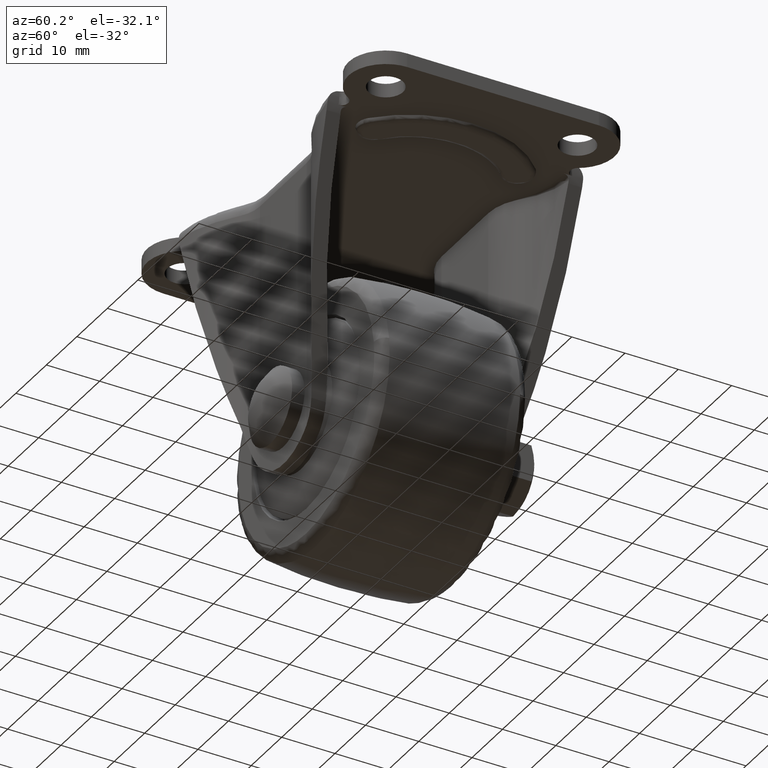
[diagram: clean part render]
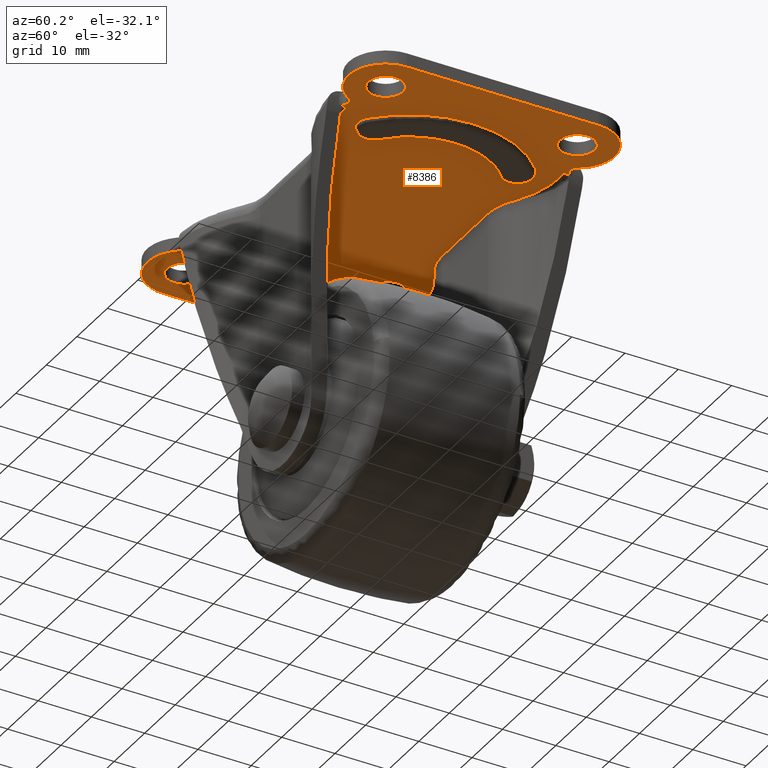
[diagram: same view with one face highlighted and labeled with its STEP entity id]
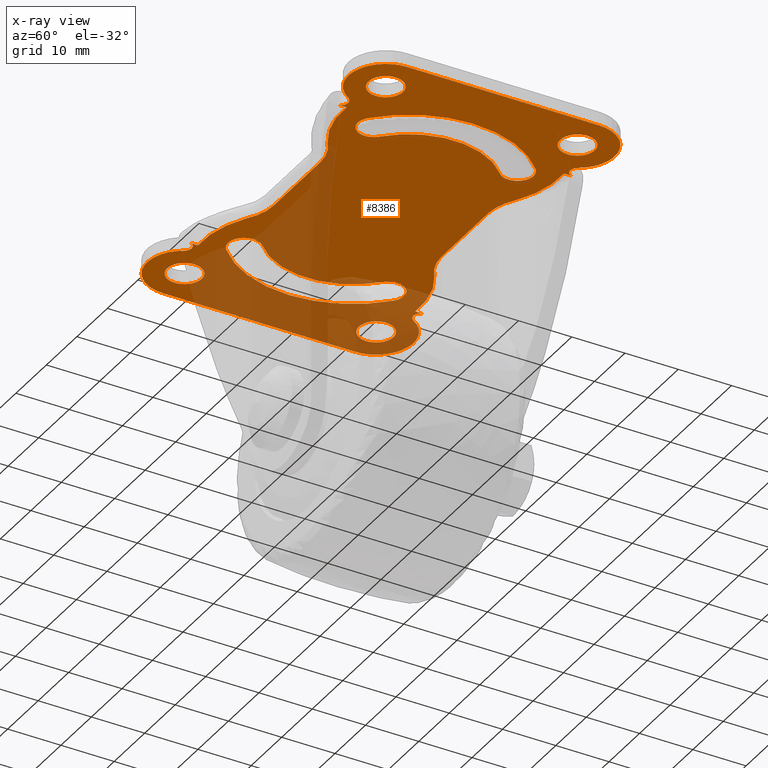
[diagram: x-ray of the same camera — body ghosted, the highlighted face saturated]
A machine part, auxiliary view. The second image highlights one B-rep face of the part: STEP entity #8386.
The next image is the same camera in x-ray: the body ghosted, the highlighted face saturated — about 29% of this face is hidden behind the body in this view.
In plain terms, the highlighted face is a freeform B-spline surface patch.
Its self-contained STEP definition (entity closure, byte-faithful):
#2383=CARTESIAN_POINT('',(-32.801592246363199,21.243938094861981,-2.600000000000160));
#2384=VERTEX_POINT('',#2383);
#2390=CARTESIAN_POINT('',(-29.750000000000000,18.0,-2.600000000000160));
#2391=VERTEX_POINT('',#2390);
#2392=CARTESIAN_POINT('',(-29.750000000000000,18.0,-2.600000000000160));
#2393=CARTESIAN_POINT('',(-29.749999999999993,21.057294717163035,-2.600000000000160));
#2394=CARTESIAN_POINT('',(-32.801592246363199,21.243938094861985,-2.600000000000160));
#2402=(BOUNDED_CURVE()B_SPLINE_CURVE(2,(#2392,#2393,#2394),.UNSPECIFIED.,.F.,.U.)B_SPLINE_CURVE_WITH_KNOTS((3,3),(0.500000000000000,0.739332962226169),.UNSPECIFIED.)CURVE()GEOMETRIC_REPRESENTATION_ITEM()RATIONAL_B_SPLINE_CURVE((1.0,0.719603993301676,0.976072041639340))REPRESENTATION_ITEM(''));
#2403=EDGE_CURVE('',#2391,#2384,#2402,.T.);
#2405=CARTESIAN_POINT('',(-33.383611262737581,14.772719039330340,-2.600000000000160));
#2406=VERTEX_POINT('',#2405);
#2407=CARTESIAN_POINT('',(-33.383611262737581,14.772719039330342,-2.600000000000160));
#2408=CARTESIAN_POINT('',(-33.192478388972916,14.750000000000005,-2.600000000000160));
#2409=CARTESIAN_POINT('',(-33.0,14.750000000000000,-2.600000000000160));
#2410=CARTESIAN_POINT('',(-29.750000000000007,14.749999999999993,-2.600000000000160));
#2411=CARTESIAN_POINT('',(-29.750000000000000,18.0,-2.600000000000160));
#2419=(BOUNDED_CURVE()B_SPLINE_CURVE(2,(#2407,#2408,#2409,#2410,#2411),.UNSPECIFIED.,.F.,.U.)B_SPLINE_CURVE_WITH_KNOTS((3,2,3),(0.229562473504844,0.250000000000000,0.500000000000000),.UNSPECIFIED.)CURVE()GEOMETRIC_REPRESENTATION_ITEM()RATIONAL_B_SPLINE_CURVE((0.956026754166717,0.976055948320994,1.0,0.707106781186547,1.0))REPRESENTATION_ITEM(''));
#2420=EDGE_CURVE('',#2406,#2391,#2419,.T.);
#2464=CARTESIAN_POINT('',(-36.250000000000007,18.0,-2.600000000000160));
#2465=VERTEX_POINT('',#2464);
#2466=CARTESIAN_POINT('',(-36.250000000000007,18.0,-2.600000000000160));
#2467=CARTESIAN_POINT('',(-36.250000000000007,15.113432790843826,-2.600000000000161));
#2468=CARTESIAN_POINT('',(-33.383611262737588,14.772719039330344,-2.600000000000160));
#2476=(BOUNDED_CURVE()B_SPLINE_CURVE(2,(#2466,#2467,#2468),.UNSPECIFIED.,.F.,.U.)B_SPLINE_CURVE_WITH_KNOTS((3,3),(0.0,0.229562473504844),.UNSPECIFIED.)CURVE()GEOMETRIC_REPRESENTATION_ITEM()RATIONAL_B_SPLINE_CURVE((1.0,0.731050832865553,0.956026754166717))REPRESENTATION_ITEM(''));
#2477=EDGE_CURVE('',#2465,#2406,#2476,.T.);
#2479=CARTESIAN_POINT('',(-32.801592246363199,21.243938094861985,-2.600000000000160));
#2480=CARTESIAN_POINT('',(-32.900703519130644,21.250000000000000,-2.600000000000160));
#2481=CARTESIAN_POINT('',(-33.0,21.250000000000000,-2.600000000000160));
#2482=CARTESIAN_POINT('',(-36.250000000000007,21.249999999999996,-2.600000000000160));
#2483=CARTESIAN_POINT('',(-36.250000000000007,18.0,-2.600000000000160));
#2491=(BOUNDED_CURVE()B_SPLINE_CURVE(2,(#2479,#2480,#2481,#2482,#2483),.UNSPECIFIED.,.F.,.U.)B_SPLINE_CURVE_WITH_KNOTS((3,2,3),(0.739332962226168,0.750000000000000,1.0),.UNSPECIFIED.)CURVE()GEOMETRIC_REPRESENTATION_ITEM()RATIONAL_B_SPLINE_CURVE((0.976072041639340,0.987502787884871,1.0,0.707106781186547,1.0))REPRESENTATION_ITEM(''));
#2492=EDGE_CURVE('',#2384,#2465,#2491,.T.);
#2569=CARTESIAN_POINT('',(33.198407753636808,21.243938094861981,-2.600000000000160));
#2570=VERTEX_POINT('',#2569);
#2576=CARTESIAN_POINT('',(36.250000000000007,18.0,-2.600000000000160));
#2577=VERTEX_POINT('',#2576);
#2578=CARTESIAN_POINT('',(36.250000000000007,18.0,-2.600000000000160));
#2579=CARTESIAN_POINT('',(36.250000000000014,21.057294717163035,-2.600000000000160));
#2580=CARTESIAN_POINT('',(33.198407753636808,21.243938094861985,-2.600000000000160));
#2588=(BOUNDED_CURVE()B_SPLINE_CURVE(2,(#2578,#2579,#2580),.UNSPECIFIED.,.F.,.U.)B_SPLINE_CURVE_WITH_KNOTS((3,3),(0.500000000000000,0.739332962226169),.UNSPECIFIED.)CURVE()GEOMETRIC_REPRESENTATION_ITEM()RATIONAL_B_SPLINE_CURVE((1.0,0.719603993301676,0.976072041639340))REPRESENTATION_ITEM(''));
#2589=EDGE_CURVE('',#2577,#2570,#2588,.T.);
#2591=CARTESIAN_POINT('',(32.616388737262412,14.772719039330340,-2.600000000000160));
#2592=VERTEX_POINT('',#2591);
#2593=CARTESIAN_POINT('',(32.616388737262419,14.772719039330344,-2.600000000000160));
#2594=CARTESIAN_POINT('',(32.807521611027077,14.750000000000002,-2.600000000000160));
#2595=CARTESIAN_POINT('',(33.0,14.750000000000000,-2.600000000000160));
#2596=CARTESIAN_POINT('',(36.250000000000007,14.749999999999993,-2.600000000000160));
#2597=CARTESIAN_POINT('',(36.250000000000007,18.0,-2.600000000000160));
#2605=(BOUNDED_CURVE()B_SPLINE_CURVE(2,(#2593,#2594,#2595,#2596,#2597),.UNSPECIFIED.,.F.,.U.)B_SPLINE_CURVE_WITH_KNOTS((3,2,3),(0.229562473504844,0.250000000000000,0.500000000000000),.UNSPECIFIED.)CURVE()GEOMETRIC_REPRESENTATION_ITEM()RATIONAL_B_SPLINE_CURVE((0.956026754166716,0.976055948320994,1.0,0.707106781186547,1.0))REPRESENTATION_ITEM(''));
#2606=EDGE_CURVE('',#2592,#2577,#2605,.T.);
#2650=CARTESIAN_POINT('',(29.750000000000000,18.0,-2.600000000000160));
#2651=VERTEX_POINT('',#2650);
#2652=CARTESIAN_POINT('',(29.750000000000000,18.0,-2.600000000000160));
#2653=CARTESIAN_POINT('',(29.750000000000011,15.113432790843827,-2.600000000000160));
#2654=CARTESIAN_POINT('',(32.616388737262412,14.772719039330346,-2.600000000000159));
#2662=(BOUNDED_CURVE()B_SPLINE_CURVE(2,(#2652,#2653,#2654),.UNSPECIFIED.,.F.,.U.)B_SPLINE_CURVE_WITH_KNOTS((3,3),(0.0,0.229562473504844),.UNSPECIFIED.)CURVE()GEOMETRIC_REPRESENTATION_ITEM()RATIONAL_B_SPLINE_CURVE((1.0,0.731050832865554,0.956026754166716))REPRESENTATION_ITEM(''));
#2663=EDGE_CURVE('',#2651,#2592,#2662,.T.);
#2665=CARTESIAN_POINT('',(33.198407753636808,21.243938094861981,-2.600000000000159));
#2666=CARTESIAN_POINT('',(33.099296480869349,21.249999999999996,-2.600000000000160));
#2667=CARTESIAN_POINT('',(33.0,21.250000000000000,-2.600000000000160));
#2668=CARTESIAN_POINT('',(29.750000000000007,21.249999999999996,-2.600000000000160));
#2669=CARTESIAN_POINT('',(29.750000000000000,18.0,-2.600000000000160));
#2677=(BOUNDED_CURVE()B_SPLINE_CURVE(2,(#2665,#2666,#2667,#2668,#2669),.UNSPECIFIED.,.F.,.U.)B_SPLINE_CURVE_WITH_KNOTS((3,2,3),(0.739332962226169,0.750000000000000,1.0),.UNSPECIFIED.)CURVE()GEOMETRIC_REPRESENTATION_ITEM()RATIONAL_B_SPLINE_CURVE((0.976072041639340,0.987502787884871,1.0,0.707106781186547,1.0))REPRESENTATION_ITEM(''));
#2678=EDGE_CURVE('',#2570,#2651,#2677,.T.);
#2755=CARTESIAN_POINT('',(33.198407753636808,-14.756061905138020,-2.600000000000160));
#2756=VERTEX_POINT('',#2755);
#2762=CARTESIAN_POINT('',(36.250000000000007,-18.0,-2.600000000000160));
#2763=VERTEX_POINT('',#2762);
#2764=CARTESIAN_POINT('',(36.250000000000007,-18.0,-2.600000000000160));
#2765=CARTESIAN_POINT('',(36.250000000000014,-14.942705282836961,-2.600000000000160));
#2766=CARTESIAN_POINT('',(33.198407753636808,-14.756061905138013,-2.600000000000160));
#2774=(BOUNDED_CURVE()B_SPLINE_CURVE(2,(#2764,#2765,#2766),.UNSPECIFIED.,.F.,.U.)B_SPLINE_CURVE_WITH_KNOTS((3,3),(0.500000000000000,0.739332962226169),.UNSPECIFIED.)CURVE()GEOMETRIC_REPRESENTATION_ITEM()RATIONAL_B_SPLINE_CURVE((1.0,0.719603993301676,0.976072041639340))REPRESENTATION_ITEM(''));
#2775=EDGE_CURVE('',#2763,#2756,#2774,.T.);
#2777=CARTESIAN_POINT('',(32.616388737262412,-21.227280960669660,-2.600000000000160));
#2778=VERTEX_POINT('',#2777);
#2779=CARTESIAN_POINT('',(32.616388737262412,-21.227280960669656,-2.600000000000160));
#2780=CARTESIAN_POINT('',(32.807521611027077,-21.249999999999989,-2.600000000000160));
#2781=CARTESIAN_POINT('',(33.0,-21.250000000000000,-2.600000000000160));
#2782=CARTESIAN_POINT('',(36.250000000000007,-21.249999999999996,-2.600000000000160));
#2783=CARTESIAN_POINT('',(36.250000000000007,-18.0,-2.600000000000160));
#2791=(BOUNDED_CURVE()B_SPLINE_CURVE(2,(#2779,#2780,#2781,#2782,#2783),.UNSPECIFIED.,.F.,.U.)B_SPLINE_CURVE_WITH_KNOTS((3,2,3),(0.229562473504843,0.250000000000000,0.500000000000000),.UNSPECIFIED.)CURVE()GEOMETRIC_REPRESENTATION_ITEM()RATIONAL_B_SPLINE_CURVE((0.956026754166716,0.976055948320993,1.0,0.707106781186547,1.0))REPRESENTATION_ITEM(''));
#2792=EDGE_CURVE('',#2778,#2763,#2791,.T.);
#2836=CARTESIAN_POINT('',(29.750000000000000,-18.0,-2.600000000000160));
#2837=VERTEX_POINT('',#2836);
#2838=CARTESIAN_POINT('',(29.750000000000000,-18.0,-2.600000000000160));
#2839=CARTESIAN_POINT('',(29.750000000000018,-20.886567209156176,-2.600000000000160));
#2840=CARTESIAN_POINT('',(32.616388737262405,-21.227280960669653,-2.600000000000160));
#2848=(BOUNDED_CURVE()B_SPLINE_CURVE(2,(#2838,#2839,#2840),.UNSPECIFIED.,.F.,.U.)B_SPLINE_CURVE_WITH_KNOTS((3,3),(0.0,0.229562473504843),.UNSPECIFIED.)CURVE()GEOMETRIC_REPRESENTATION_ITEM()RATIONAL_B_SPLINE_CURVE((1.0,0.731050832865554,0.956026754166716))REPRESENTATION_ITEM(''));
#2849=EDGE_CURVE('',#2837,#2778,#2848,.T.);
#2851=CARTESIAN_POINT('',(33.198407753636808,-14.756061905138015,-2.600000000000159));
#2852=CARTESIAN_POINT('',(33.099296480869349,-14.750000000000000,-2.600000000000160));
#2853=CARTESIAN_POINT('',(33.0,-14.750000000000000,-2.600000000000160));
#2854=CARTESIAN_POINT('',(29.750000000000007,-14.749999999999993,-2.600000000000160));
#2855=CARTESIAN_POINT('',(29.750000000000000,-18.0,-2.600000000000160));
#2863=(BOUNDED_CURVE()B_SPLINE_CURVE(2,(#2851,#2852,#2853,#2854,#2855),.UNSPECIFIED.,.F.,.U.)B_SPLINE_CURVE_WITH_KNOTS((3,2,3),(0.739332962226169,0.750000000000000,1.0),.UNSPECIFIED.)CURVE()GEOMETRIC_REPRESENTATION_ITEM()RATIONAL_B_SPLINE_CURVE((0.976072041639340,0.987502787884871,1.0,0.707106781186547,1.0))REPRESENTATION_ITEM(''));
#2864=EDGE_CURVE('',#2756,#2837,#2863,.T.);
#2941=CARTESIAN_POINT('',(-32.801592246363199,-14.756061905138020,-2.600000000000160));
#2942=VERTEX_POINT('',#2941);
#2948=CARTESIAN_POINT('',(-29.750000000000000,-18.0,-2.600000000000160));
#2949=VERTEX_POINT('',#2948);
#2950=CARTESIAN_POINT('',(-29.750000000000000,-18.0,-2.600000000000160));
#2951=CARTESIAN_POINT('',(-29.749999999999993,-14.942705282836961,-2.600000000000160));
#2952=CARTESIAN_POINT('',(-32.801592246363199,-14.756061905138013,-2.600000000000160));
#2960=(BOUNDED_CURVE()B_SPLINE_CURVE(2,(#2950,#2951,#2952),.UNSPECIFIED.,.F.,.U.)B_SPLINE_CURVE_WITH_KNOTS((3,3),(0.500000000000000,0.739332962226169),.UNSPECIFIED.)CURVE()GEOMETRIC_REPRESENTATION_ITEM()RATIONAL_B_SPLINE_CURVE((1.0,0.719603993301676,0.976072041639340))REPRESENTATION_ITEM(''));
#2961=EDGE_CURVE('',#2949,#2942,#2960,.T.);
#2963=CARTESIAN_POINT('',(-33.383611262737581,-21.227280960669660,-2.600000000000160));
#2964=VERTEX_POINT('',#2963);
#2965=CARTESIAN_POINT('',(-33.383611262737581,-21.227280960669656,-2.600000000000160));
#2966=CARTESIAN_POINT('',(-33.192478388972923,-21.249999999999996,-2.600000000000160));
#2967=CARTESIAN_POINT('',(-33.0,-21.250000000000000,-2.600000000000160));
#2968=CARTESIAN_POINT('',(-29.750000000000007,-21.249999999999996,-2.600000000000160));
#2969=CARTESIAN_POINT('',(-29.750000000000000,-18.0,-2.600000000000160));
#2977=(BOUNDED_CURVE()B_SPLINE_CURVE(2,(#2965,#2966,#2967,#2968,#2969),.UNSPECIFIED.,.F.,.U.)B_SPLINE_CURVE_WITH_KNOTS((3,2,3),(0.229562473504844,0.250000000000000,0.500000000000000),.UNSPECIFIED.)CURVE()GEOMETRIC_REPRESENTATION_ITEM()RATIONAL_B_SPLINE_CURVE((0.956026754166717,0.976055948320995,1.0,0.707106781186547,1.0))REPRESENTATION_ITEM(''));
#2978=EDGE_CURVE('',#2964,#2949,#2977,.T.);
#3022=CARTESIAN_POINT('',(-36.250000000000007,-18.0,-2.600000000000160));
#3023=VERTEX_POINT('',#3022);
#3024=CARTESIAN_POINT('',(-36.250000000000007,-18.0,-2.600000000000160));
#3025=CARTESIAN_POINT('',(-36.250000000000014,-20.886567209156187,-2.600000000000160));
#3026=CARTESIAN_POINT('',(-33.383611262737588,-21.227280960669660,-2.600000000000160));
#3034=(BOUNDED_CURVE()B_SPLINE_CURVE(2,(#3024,#3025,#3026),.UNSPECIFIED.,.F.,.U.)B_SPLINE_CURVE_WITH_KNOTS((3,3),(0.0,0.229562473504844),.UNSPECIFIED.)CURVE()GEOMETRIC_REPRESENTATION_ITEM()RATIONAL_B_SPLINE_CURVE((1.0,0.731050832865553,0.956026754166717))REPRESENTATION_ITEM(''));
#3035=EDGE_CURVE('',#3023,#2964,#3034,.T.);
#3037=CARTESIAN_POINT('',(-32.801592246363199,-14.756061905138019,-2.600000000000160));
#3038=CARTESIAN_POINT('',(-32.900703519130644,-14.750000000000002,-2.600000000000160));
#3039=CARTESIAN_POINT('',(-33.0,-14.750000000000000,-2.600000000000160));
#3040=CARTESIAN_POINT('',(-36.250000000000007,-14.749999999999993,-2.600000000000160));
#3041=CARTESIAN_POINT('',(-36.250000000000007,-18.0,-2.600000000000160));
#3049=(BOUNDED_CURVE()B_SPLINE_CURVE(2,(#3037,#3038,#3039,#3040,#3041),.UNSPECIFIED.,.F.,.U.)B_SPLINE_CURVE_WITH_KNOTS((3,2,3),(0.739332962226168,0.750000000000000,1.0),.UNSPECIFIED.)CURVE()GEOMETRIC_REPRESENTATION_ITEM()RATIONAL_B_SPLINE_CURVE((0.976072041639340,0.987502787884871,1.0,0.707106781186547,1.0))REPRESENTATION_ITEM(''));
#3050=EDGE_CURVE('',#2942,#3023,#3049,.T.);
#3491=CARTESIAN_POINT('',(24.386157740226601,21.929116716007400,-2.600000000000160));
#3492=VERTEX_POINT('',#3491);
#3493=CARTESIAN_POINT('',(24.826150739570700,21.091729408500200,-2.600000000000160));
#3494=VERTEX_POINT('',#3493);
#3495=CARTESIAN_POINT('',(24.386157740226601,21.929116716007400,-2.600000000000165));
#3496=CARTESIAN_POINT('',(24.386157740226611,21.846425880337360,-2.600000000000165));
#3497=CARTESIAN_POINT('',(24.396223317669602,21.765457696355359,-2.600000000000111));
#3498=CARTESIAN_POINT('',(24.425732847345230,21.646471788088490,-2.600000000000110));
#3499=CARTESIAN_POINT('',(24.438091668643239,21.606994525176319,-2.600000000000111));
#3500=CARTESIAN_POINT('',(24.467431192260289,21.530055640321081,-2.600000000000110));
#3501=CARTESIAN_POINT('',(24.501160698240959,21.455545703912470,-2.600000000000110));
#3502=CARTESIAN_POINT('',(24.543387942038841,21.385737510099030,-2.600000000000110));
#3503=CARTESIAN_POINT('',(24.589913277516210,21.318307422219409,-2.600000000000111));
#3504=CARTESIAN_POINT('',(24.615497259556861,21.285611899102399,-2.600000000000111));
#3505=CARTESIAN_POINT('',(24.697147492553409,21.193308832927961,-2.600000000000110));
#3506=CARTESIAN_POINT('',(24.758249570277410,21.138890804097262,-2.600000000000110));
#3507=CARTESIAN_POINT('',(24.826150739570700,21.091729408500200,-2.600000000000160));
#3508=B_SPLINE_CURVE_WITH_KNOTS('',3,(#3495,#3496,#3497,#3498,#3499,#3500,#3501,#3502,#3503,#3504,#3505,#3506,#3507),.UNSPECIFIED.,.F.,.U.,(4,2,2,1,2,2,4),(0.0,0.250000000000002,0.375000000000002,0.500000000000001,0.625000000000001,0.750000000000001,1.0),.UNSPECIFIED.);
#3509=EDGE_CURVE('',#3492,#3494,#3508,.T.);
#3731=CARTESIAN_POINT('',(-24.826150739570799,21.091729408500100,-2.600000000000160));
#3732=VERTEX_POINT('',#3731);
#3733=CARTESIAN_POINT('',(-24.386157740226651,21.929116716007350,-2.600000000000115));
#3734=VERTEX_POINT('',#3733);
#3735=CARTESIAN_POINT('',(-24.826150739570799,21.091729408500100,-2.600000000000160));
#3736=CARTESIAN_POINT('',(-24.758246360519500,21.138893033464811,-2.600000000000160));
#3737=CARTESIAN_POINT('',(-24.697330116525521,21.193182564031570,-2.600000000000110));
#3738=CARTESIAN_POINT('',(-24.616067358109529,21.284927817021739,-2.600000000000110));
#3739=CARTESIAN_POINT('',(-24.590558504812162,21.317433185237029,-2.600000000000110));
#3740=CARTESIAN_POINT('',(-24.543711678433070,21.385208656423899,-2.600000000000110));
#3741=CARTESIAN_POINT('',(-24.501348583326809,21.455191089438070,-2.600000000000110));
#3742=CARTESIAN_POINT('',(-24.467696849142591,21.529461388929761,-2.600000000000110));
#3743=CARTESIAN_POINT('',(-24.438467606787341,21.605908507248060,-2.600000000000110));
#3744=CARTESIAN_POINT('',(-24.426011052459611,21.645481008998338,-2.600000000000111));
#3745=CARTESIAN_POINT('',(-24.396224557105540,21.765194394823489,-2.600000000000109));
#3746=CARTESIAN_POINT('',(-24.386157740226640,21.846424787743299,-2.600000000000109));
#3747=CARTESIAN_POINT('',(-24.386157740226651,21.929116716007350,-2.600000000000110));
#3748=B_SPLINE_CURVE_WITH_KNOTS('',3,(#3735,#3736,#3737,#3738,#3739,#3740,#3741,#3742,#3743,#3744,#3745,#3746,#3747),.UNSPECIFIED.,.F.,.U.,(4,2,2,1,2,2,4),(0.0,0.250000000000009,0.375000000000010,0.500000000000010,0.625000000000011,0.750000000000011,1.0),.UNSPECIFIED.);
#3749=EDGE_CURVE('',#3732,#3734,#3748,.T.);
#3829=CARTESIAN_POINT('',(-24.386157740226651,-21.929116716007350,-2.600000000000160));
#3830=VERTEX_POINT('',#3829);
#3831=CARTESIAN_POINT('',(-24.826150739570799,-21.091729408500100,-2.600000000000160));
#3832=VERTEX_POINT('',#3831);
#3833=CARTESIAN_POINT('',(-24.386157740226651,-21.929116716007350,-2.600000000000160));
#3834=CARTESIAN_POINT('',(-24.386157740226651,-21.846425880337300,-2.600000000000160));
#3835=CARTESIAN_POINT('',(-24.396223317669630,-21.765457696355298,-2.600000000000110));
#3836=CARTESIAN_POINT('',(-24.425732847345291,-21.646471788088419,-2.600000000000111));
#3837=CARTESIAN_POINT('',(-24.438091668643299,-21.606994525176241,-2.600000000000110));
#3838=CARTESIAN_POINT('',(-24.467431192260349,-21.530055640320999,-2.600000000000110));
#3839=CARTESIAN_POINT('',(-24.501161051664820,-21.455545899459452,-2.600000000000110));
#3840=CARTESIAN_POINT('',(-24.543387942038930,-21.385737510098949,-2.600000000000110));
#3841=CARTESIAN_POINT('',(-24.589913277516281,-21.318307422219331,-2.600000000000110));
#3842=CARTESIAN_POINT('',(-24.615497259556939,-21.285611899102300,-2.600000000000110));
#3843=CARTESIAN_POINT('',(-24.697147492553508,-21.193308832927880,-2.600000000000111));
#3844=CARTESIAN_POINT('',(-24.758249570277510,-21.138890804097208,-2.600000000000110));
#3845=CARTESIAN_POINT('',(-24.826150739570799,-21.091729408500100,-2.600000000000110));
#3846=B_SPLINE_CURVE_WITH_KNOTS('',3,(#3833,#3834,#3835,#3836,#3837,#3838,#3839,#3840,#3841,#3842,#3843,#3844,#3845),.UNSPECIFIED.,.F.,.U.,(4,2,2,1,2,2,4),(0.0,0.249999999999998,0.374999999999997,0.499999999999996,0.624999999999995,0.749999999999994,1.0),.UNSPECIFIED.);
#3847=EDGE_CURVE('',#3830,#3832,#3846,.T.);
#4015=CARTESIAN_POINT('',(24.386157740226601,-21.929116716007400,-2.600000000000110));
#4016=VERTEX_POINT('',#4015);
#4028=CARTESIAN_POINT('',(24.826150739570700,-21.091729408500150,-2.600000000000160));
#4029=VERTEX_POINT('',#4028);
#4030=CARTESIAN_POINT('',(24.826150739570700,-21.091729408500150,-2.600000000000160));
#4031=CARTESIAN_POINT('',(24.758246360519419,-21.138893033464861,-2.600000000000160));
#4032=CARTESIAN_POINT('',(24.697330116525450,-21.193182564031648,-2.600000000000111));
#4033=CARTESIAN_POINT('',(24.616067358109461,-21.284927817021810,-2.600000000000110));
#4034=CARTESIAN_POINT('',(24.590558504812090,-21.317433185237089,-2.600000000000109));
#4035=CARTESIAN_POINT('',(24.543711678433009,-21.385208656423949,-2.600000000000110));
#4036=CARTESIAN_POINT('',(24.501348583326759,-21.455191089438149,-2.600000000000110));
#4037=CARTESIAN_POINT('',(24.467696849142531,-21.529461388929828,-2.600000000000110));
#4038=CARTESIAN_POINT('',(24.438467606787281,-21.605908507248120,-2.600000000000110));
#4039=CARTESIAN_POINT('',(24.426011052459550,-21.645481008998392,-2.600000000000110));
#4040=CARTESIAN_POINT('',(24.396224557105491,-21.765194394823538,-2.600000000000109));
#4041=CARTESIAN_POINT('',(24.386157740226590,-21.846424787743349,-2.600000000000110));
#4042=CARTESIAN_POINT('',(24.386157740226601,-21.929116716007400,-2.600000000000110));
#4043=B_SPLINE_CURVE_WITH_KNOTS('',3,(#4030,#4031,#4032,#4033,#4034,#4035,#4036,#4037,#4038,#4039,#4040,#4041,#4042),.UNSPECIFIED.,.F.,.U.,(4,2,2,1,2,2,4),(0.0,0.249999999999998,0.375000000000000,0.500000000000003,0.625000000000005,0.750000000000008,1.0),.UNSPECIFIED.);
#4044=EDGE_CURVE('',#4029,#4016,#4043,.T.);
#4141=CARTESIAN_POINT('',(24.386157740226601,-20.399968012806202,-2.600000000000110));
#4142=VERTEX_POINT('',#4141);
#4161=CARTESIAN_POINT('',(13.345072648237799,-17.665193757485248,-2.600000000000160));
#4162=VERTEX_POINT('',#4161);
#4172=CARTESIAN_POINT('',(24.386157740226601,-20.399968012806202,-2.600000000000110));
#4173=CARTESIAN_POINT('',(21.545631198920550,-20.632463782191699,-2.600000000000110));
#4174=CARTESIAN_POINT('',(18.723636326957301,-19.943455605230749,-2.600000000000110));
#4175=CARTESIAN_POINT('',(15.848204677510900,-19.241400495760448,-2.600000000000110));
#4176=CARTESIAN_POINT('',(13.345072648237760,-17.665193757485248,-2.600000000000110));
#4177=B_SPLINE_CURVE_WITH_KNOTS('',2,(#4172,#4173,#4174,#4175,#4176),.UNSPECIFIED.,.F.,.U.,(3,2,3),(0.0,0.500000000000000,1.0),.UNSPECIFIED.);
#4178=EDGE_CURVE('',#4142,#4162,#4177,.T.);
#4203=CARTESIAN_POINT('',(-13.345072648237799,-17.665193757485248,-2.600000000000160));
#4204=VERTEX_POINT('',#4203);
#4205=CARTESIAN_POINT('',(-24.386157740226651,-20.399968012805800,-2.600000000000160));
#4206=VERTEX_POINT('',#4205);
#4207=CARTESIAN_POINT('',(-13.345072648237799,-17.665193757485248,-2.600000000000110));
#4208=CARTESIAN_POINT('',(-15.847375708116999,-19.240878498861552,-2.600000000000110));
#4209=CARTESIAN_POINT('',(-18.723636326958250,-19.943455605227900,-2.600000000000110));
#4210=CARTESIAN_POINT('',(-21.544669676411601,-20.632542482348398,-2.600000000000110));
#4211=CARTESIAN_POINT('',(-24.386157740226651,-20.399968012805800,-2.600000000000160));
#4212=B_SPLINE_CURVE_WITH_KNOTS('',2,(#4207,#4208,#4209,#4210,#4211),.UNSPECIFIED.,.F.,.U.,(3,2,3),(0.0,0.500000000000000,1.0),.UNSPECIFIED.);
#4213=EDGE_CURVE('',#4204,#4206,#4212,.T.);
#4269=CARTESIAN_POINT('',(-24.386157740226651,20.399968012802351,-2.600000000000110));
#4270=VERTEX_POINT('',#4269);
#4289=CARTESIAN_POINT('',(-13.345072648237799,17.665193757485248,-2.600000000000160));
#4290=VERTEX_POINT('',#4289);
#4300=CARTESIAN_POINT('',(-24.386157740226651,20.399968012802351,-2.600000000000110));
#4301=CARTESIAN_POINT('',(-21.545631198833899,20.632463782170049,-2.600000000000110));
#4302=CARTESIAN_POINT('',(-18.723636326958101,19.943455605221150,-2.600000000000110));
#4303=CARTESIAN_POINT('',(-15.848204677488550,19.241400495735750,-2.600000000000110));
#4304=CARTESIAN_POINT('',(-13.345072648237799,17.665193757485248,-2.600000000000110));
#4305=B_SPLINE_CURVE_WITH_KNOTS('',2,(#4300,#4301,#4302,#4303,#4304),.UNSPECIFIED.,.F.,.U.,(3,2,3),(0.0,0.500000000000000,1.0),.UNSPECIFIED.);
#4306=EDGE_CURVE('',#4270,#4290,#4305,.T.);
#4331=CARTESIAN_POINT('',(13.345072648237799,17.665193757485248,-2.600000000000160));
#4332=VERTEX_POINT('',#4331);
#4333=CARTESIAN_POINT('',(24.386157740226601,20.399968012801551,-2.600000000000160));
#4334=VERTEX_POINT('',#4333);
#4335=CARTESIAN_POINT('',(13.345072648237799,17.665193757485248,-2.600000000000160));
#4336=CARTESIAN_POINT('',(15.847375708110549,19.240878498852052,-2.600000000000110));
#4337=CARTESIAN_POINT('',(18.723636326961500,19.943455605221050,-2.600000000000110));
#4338=CARTESIAN_POINT('',(21.544669676409249,20.632542482340401,-2.600000000000110));
#4339=CARTESIAN_POINT('',(24.386157740226601,20.399968012801551,-2.600000000000160));
#4340=B_SPLINE_CURVE_WITH_KNOTS('',2,(#4335,#4336,#4337,#4338,#4339),.UNSPECIFIED.,.F.,.U.,(3,2,3),(0.0,0.500000000000000,1.0),.UNSPECIFIED.);
#4341=EDGE_CURVE('',#4332,#4334,#4340,.T.);
#4389=CARTESIAN_POINT('',(24.386157740226601,-21.929116716007400,-2.600000000000110));
#4390=CARTESIAN_POINT('',(24.386157740226601,-20.399968012806202,-2.600000000000110));
#4391=QUASI_UNIFORM_CURVE('',1,(#4389,#4390),.UNSPECIFIED.,.F.,.U.);
#4392=EDGE_CURVE('',#4016,#4142,#4391,.T.);
#4468=CARTESIAN_POINT('',(24.386157740226601,20.399968012801551,-2.600000000000160));
#4469=CARTESIAN_POINT('',(24.386157740226601,21.929116716007400,-2.600000000000160));
#4470=QUASI_UNIFORM_CURVE('',1,(#4468,#4469),.UNSPECIFIED.,.F.,.U.);
#4471=EDGE_CURVE('',#4334,#3492,#4470,.T.);
#4531=CARTESIAN_POINT('',(-24.386157740226651,21.929116716007350,-2.600000000000115));
#4532=CARTESIAN_POINT('',(-24.386157740226651,20.399968012802351,-2.600000000000110));
#4533=QUASI_UNIFORM_CURVE('',1,(#4531,#4532),.UNSPECIFIED.,.F.,.U.);
#4534=EDGE_CURVE('',#3734,#4270,#4533,.T.);
#4610=CARTESIAN_POINT('',(-24.386157740226651,-20.399968012805800,-2.600000000000160));
#4611=CARTESIAN_POINT('',(-24.386157740226651,-21.929116716007350,-2.600000000000160));
#4612=QUASI_UNIFORM_CURVE('',1,(#4610,#4611),.UNSPECIFIED.,.F.,.U.);
#4613=EDGE_CURVE('',#4206,#3830,#4612,.T.);
#5248=CARTESIAN_POINT('',(-19.239690721649499,-11.273195876288661,-2.600000000000160));
#5249=VERTEX_POINT('',#5248);
#5282=CARTESIAN_POINT('',(-19.239690721649499,11.273195876288661,-2.600000000000160));
#5283=VERTEX_POINT('',#5282);
#5297=CARTESIAN_POINT('',(-19.239690721649492,-11.273195876288650,-2.600000000000160));
#5298=CARTESIAN_POINT('',(-24.250000000000000,-6.749999999999996,-2.600000000000160));
#5299=CARTESIAN_POINT('',(-24.250000000000000,0.0,-2.600000000000160));
#5300=CARTESIAN_POINT('',(-24.250000000000000,6.749999999999989,-2.600000000000160));
#5301=CARTESIAN_POINT('',(-19.239690721649499,11.273195876288650,-2.600000000000160));
#5309=(BOUNDED_CURVE()B_SPLINE_CURVE(2,(#5297,#5298,#5299,#5300,#5301),.UNSPECIFIED.,.F.,.U.)B_SPLINE_CURVE_WITH_KNOTS((3,2,3),(0.0,0.500000000000000,1.0),.UNSPECIFIED.)CURVE()GEOMETRIC_REPRESENTATION_ITEM()RATIONAL_B_SPLINE_CURVE((1.0,0.913811548620257,1.0,0.913811548620257,1.0))REPRESENTATION_ITEM(''));
#5310=EDGE_CURVE('',#5249,#5283,#5309,.T.);
#5340=CARTESIAN_POINT('',(-23.260309264394799,15.726804136310250,-2.600000000000160));
#5341=VERTEX_POINT('',#5340);
#5355=CARTESIAN_POINT('',(-23.260309264394799,15.726804136310250,-2.600000000000160));
#5356=CARTESIAN_POINT('',(-21.033505135062402,17.737113394405597,-2.600000000000159));
#5357=CARTESIAN_POINT('',(-19.023195869989198,15.510309271372650,-2.600000000000160));
#5358=CARTESIAN_POINT('',(-17.012886604915995,13.283505148339710,-2.600000000000159));
#5359=CARTESIAN_POINT('',(-19.239690721649499,11.273195876288650,-2.600000000000160));
#5367=(BOUNDED_CURVE()B_SPLINE_CURVE(2,(#5355,#5356,#5357,#5358,#5359),.UNSPECIFIED.,.F.,.U.)B_SPLINE_CURVE_WITH_KNOTS((3,2,3),(0.0,0.500000000000000,1.0),.UNSPECIFIED.)CURVE()GEOMETRIC_REPRESENTATION_ITEM()RATIONAL_B_SPLINE_CURVE((1.0,0.707106782294434,1.0,0.707106782294434,1.0))REPRESENTATION_ITEM(''));
#5368=EDGE_CURVE('',#5341,#5283,#5367,.T.);
#5412=CARTESIAN_POINT('',(-23.260309264394650,-15.726804136310349,-2.600000000000160));
#5413=VERTEX_POINT('',#5412);
#5445=CARTESIAN_POINT('',(-19.239690721649499,-11.273195876288650,-2.600000000000160));
#5446=CARTESIAN_POINT('',(-17.012886604916066,-13.283505148339646,-2.600000000000160));
#5447=CARTESIAN_POINT('',(-19.023195869989141,-15.510309271372590,-2.600000000000160));
#5448=CARTESIAN_POINT('',(-21.033505135062214,-17.737113394405529,-2.600000000000160));
#5449=CARTESIAN_POINT('',(-23.260309264394671,-15.726804136310371,-2.600000000000160));
#5457=(BOUNDED_CURVE()B_SPLINE_CURVE(2,(#5445,#5446,#5447,#5448,#5449),.UNSPECIFIED.,.F.,.U.)B_SPLINE_CURVE_WITH_KNOTS((3,2,3),(0.0,0.500000000000000,1.0),.UNSPECIFIED.)CURVE()GEOMETRIC_REPRESENTATION_ITEM()RATIONAL_B_SPLINE_CURVE((1.0,0.707106782294444,1.0,0.707106782294444,1.0))REPRESENTATION_ITEM(''));
#5458=EDGE_CURVE('',#5249,#5413,#5457,.T.);
#5497=CARTESIAN_POINT('',(-23.260309264394671,-15.726804136310371,-2.600000000000160));
#5498=CARTESIAN_POINT('',(-30.250000000000004,-9.416666677924434,-2.600000000000160));
#5499=CARTESIAN_POINT('',(-30.250000000000000,0.0,-2.600000000000160));
#5500=CARTESIAN_POINT('',(-30.250000000000004,9.416666677924326,-2.600000000000160));
#5501=CARTESIAN_POINT('',(-23.260309264394799,15.726804136310250,-2.600000000000160));
#5509=(BOUNDED_CURVE()B_SPLINE_CURVE(2,(#5497,#5498,#5499,#5500,#5501),.UNSPECIFIED.,.F.,.U.)B_SPLINE_CURVE_WITH_KNOTS((3,2,3),(0.0,0.500000000000000,1.0),.UNSPECIFIED.)CURVE()GEOMETRIC_REPRESENTATION_ITEM()RATIONAL_B_SPLINE_CURVE((1.0,0.913811548440055,1.0,0.913811548440055,1.0))REPRESENTATION_ITEM(''));
#5510=EDGE_CURVE('',#5413,#5341,#5509,.T.);
#5532=CARTESIAN_POINT('',(19.239690721649499,11.273195876288661,-2.600000000000160));
#5533=VERTEX_POINT('',#5532);
#5566=CARTESIAN_POINT('',(19.239690721649499,-11.273195876288661,-2.600000000000160));
#5567=VERTEX_POINT('',#5566);
#5581=CARTESIAN_POINT('',(19.239690721649499,11.273195876288650,-2.600000000000160));
#5582=CARTESIAN_POINT('',(24.250000000000000,6.749999999999994,-2.600000000000160));
#5583=CARTESIAN_POINT('',(24.250000000000000,0.0,-2.600000000000160));
#5584=CARTESIAN_POINT('',(24.250000000000000,-6.749999999999989,-2.600000000000160));
#5585=CARTESIAN_POINT('',(19.239690721649499,-11.273195876288650,-2.600000000000160));
#5593=(BOUNDED_CURVE()B_SPLINE_CURVE(2,(#5581,#5582,#5583,#5584,#5585),.UNSPECIFIED.,.F.,.U.)B_SPLINE_CURVE_WITH_KNOTS((3,2,3),(0.0,0.500000000000000,1.0),.UNSPECIFIED.)CURVE()GEOMETRIC_REPRESENTATION_ITEM()RATIONAL_B_SPLINE_CURVE((1.0,0.913811548620257,1.0,0.913811548620257,1.0))REPRESENTATION_ITEM(''));
#5594=EDGE_CURVE('',#5533,#5567,#5593,.T.);
#5624=CARTESIAN_POINT('',(23.260309276374450,-15.726804125495249,-2.600000000000160));
#5625=VERTEX_POINT('',#5624);
#5639=CARTESIAN_POINT('',(23.260309276374471,-15.726804125495271,-2.600000000000160));
#5640=CARTESIAN_POINT('',(21.033505151867214,-17.737113400977780,-2.600000000000160));
#5641=CARTESIAN_POINT('',(19.023195875396691,-15.510309277362490,-2.600000000000160));
#5642=CARTESIAN_POINT('',(17.012886598926169,-13.283505153747198,-2.600000000000160));
#5643=CARTESIAN_POINT('',(19.239690721649499,-11.273195876288650,-2.600000000000160));
#5651=(BOUNDED_CURVE()B_SPLINE_CURVE(2,(#5639,#5640,#5641,#5642,#5643),.UNSPECIFIED.,.F.,.U.)B_SPLINE_CURVE_WITH_KNOTS((3,2,3),(0.0,0.500000000000000,1.0),.UNSPECIFIED.)CURVE()GEOMETRIC_REPRESENTATION_ITEM()RATIONAL_B_SPLINE_CURVE((1.0,0.707106781343417,1.0,0.707106781343417,1.0))REPRESENTATION_ITEM(''));
#5652=EDGE_CURVE('',#5625,#5567,#5651,.T.);
#5696=CARTESIAN_POINT('',(23.260309264394749,15.726804136310250,-2.600000000000160));
#5697=VERTEX_POINT('',#5696);
#5729=CARTESIAN_POINT('',(19.239690721649499,11.273195876288650,-2.600000000000160));
#5730=CARTESIAN_POINT('',(17.012886604916012,13.283505148339694,-2.600000000000159));
#5731=CARTESIAN_POINT('',(19.023195869989191,15.510309271372639,-2.600000000000160));
#5732=CARTESIAN_POINT('',(21.033505135062370,17.737113394405586,-2.600000000000159));
#5733=CARTESIAN_POINT('',(23.260309264394770,15.726804136310280,-2.600000000000160));
#5741=(BOUNDED_CURVE()B_SPLINE_CURVE(2,(#5729,#5730,#5731,#5732,#5733),.UNSPECIFIED.,.F.,.U.)B_SPLINE_CURVE_WITH_KNOTS((3,2,3),(0.0,0.500000000000000,1.0),.UNSPECIFIED.)CURVE()GEOMETRIC_REPRESENTATION_ITEM()RATIONAL_B_SPLINE_CURVE((1.0,0.707106782294435,1.0,0.707106782294435,1.0))REPRESENTATION_ITEM(''));
#5742=EDGE_CURVE('',#5533,#5697,#5741,.T.);
#5781=CARTESIAN_POINT('',(23.260309264394770,15.726804136310280,-2.600000000000160));
#5782=CARTESIAN_POINT('',(30.249999996413489,9.416666681162180,-2.600000000000160));
#5783=CARTESIAN_POINT('',(30.250000000000000,8.069658E-009,-2.600000000000160));
#5784=CARTESIAN_POINT('',(30.250000003586514,-9.416666665022857,-2.600000000000160));
#5785=CARTESIAN_POINT('',(23.260309276374478,-15.726804125495271,-2.600000000000160));
#5793=(BOUNDED_CURVE()B_SPLINE_CURVE(2,(#5781,#5782,#5783,#5784,#5785),.UNSPECIFIED.,.F.,.U.)B_SPLINE_CURVE_WITH_KNOTS((3,2,3),(0.0,0.500000000000000,1.0),.UNSPECIFIED.)CURVE()GEOMETRIC_REPRESENTATION_ITEM()RATIONAL_B_SPLINE_CURVE((1.0,0.913811548517399,1.0,0.913811548517399,1.0))REPRESENTATION_ITEM(''));
#5794=EDGE_CURVE('',#5697,#5625,#5793,.T.);
#7295=CARTESIAN_POINT('',(7.624870356053590,15.750000000000000,-2.600000000000160));
#7296=VERTEX_POINT('',#7295);
#7297=CARTESIAN_POINT('',(13.345072648237799,17.665193757485270,-2.600000000000160));
#7298=CARTESIAN_POINT('',(10.805586660609775,15.750000000000005,-2.600000000000160));
#7299=CARTESIAN_POINT('',(7.624870356053590,15.750000000000000,-2.600000000000160));
#7307=(BOUNDED_CURVE()B_SPLINE_CURVE(2,(#7297,#7298,#7299),.UNSPECIFIED.,.F.,.U.)CURVE()GEOMETRIC_REPRESENTATION_ITEM()QUASI_UNIFORM_CURVE()RATIONAL_B_SPLINE_CURVE((1.0,0.948261740530223,1.0))REPRESENTATION_ITEM(''));
#7308=EDGE_CURVE('',#4332,#7296,#7307,.T.);
#7339=CARTESIAN_POINT('',(-7.624870356053581,15.750000000000000,-2.600000000000160));
#7340=VERTEX_POINT('',#7339);
#7346=CARTESIAN_POINT('',(-7.624870356053590,15.750000000000000,-2.600000000000160));
#7347=CARTESIAN_POINT('',(-10.805586660609771,15.750000000000000,-2.600000000000160));
#7348=CARTESIAN_POINT('',(-13.345072648237791,17.665193757485259,-2.600000000000160));
#7356=(BOUNDED_CURVE()B_SPLINE_CURVE(2,(#7346,#7347,#7348),.UNSPECIFIED.,.F.,.U.)CURVE()GEOMETRIC_REPRESENTATION_ITEM()QUASI_UNIFORM_CURVE()RATIONAL_B_SPLINE_CURVE((1.0,0.948261740530223,1.0))REPRESENTATION_ITEM(''));
#7357=EDGE_CURVE('',#7340,#4290,#7356,.T.);
#7527=CARTESIAN_POINT('',(-7.624870356053590,-15.750000000000000,-2.600000000000160));
#7528=VERTEX_POINT('',#7527);
#7529=CARTESIAN_POINT('',(-13.345072648237791,-17.665193757485259,-2.600000000000160));
#7530=CARTESIAN_POINT('',(-10.805586660609782,-15.750000000000000,-2.600000000000160));
#7531=CARTESIAN_POINT('',(-7.624870356053590,-15.750000000000000,-2.600000000000160));
#7539=(BOUNDED_CURVE()B_SPLINE_CURVE(2,(#7529,#7530,#7531),.UNSPECIFIED.,.F.,.U.)CURVE()GEOMETRIC_REPRESENTATION_ITEM()QUASI_UNIFORM_CURVE()RATIONAL_B_SPLINE_CURVE((1.0,0.948261740530223,1.0))REPRESENTATION_ITEM(''));
#7540=EDGE_CURVE('',#4204,#7528,#7539,.T.);
#7571=CARTESIAN_POINT('',(7.624870356053581,-15.750000000000000,-2.600000000000160));
#7572=VERTEX_POINT('',#7571);
#7578=CARTESIAN_POINT('',(7.624870356053590,-15.750000000000000,-2.600000000000160));
#7579=CARTESIAN_POINT('',(10.805586660609775,-15.750000000000004,-2.600000000000160));
#7580=CARTESIAN_POINT('',(13.345072648237791,-17.665193757485259,-2.600000000000160));
#7588=(BOUNDED_CURVE()B_SPLINE_CURVE(2,(#7578,#7579,#7580),.UNSPECIFIED.,.F.,.U.)CURVE()GEOMETRIC_REPRESENTATION_ITEM()QUASI_UNIFORM_CURVE()RATIONAL_B_SPLINE_CURVE((1.0,0.948261740530223,1.0))REPRESENTATION_ITEM(''));
#7589=EDGE_CURVE('',#7572,#4162,#7588,.T.);
#7839=CARTESIAN_POINT('',(-26.973279998581301,21.560709002632251,-2.600000000000160));
#7840=VERTEX_POINT('',#7839);
#7841=CARTESIAN_POINT('',(-26.973279998581312,21.560709002632240,-2.600000000000160));
#7842=CARTESIAN_POINT('',(-26.640695195264129,20.997788618461399,-2.600000000000160));
#7843=CARTESIAN_POINT('',(-26.001926146807570,20.858267605540469,-2.600000000000160));
#7844=CARTESIAN_POINT('',(-25.363157098351017,20.718746592619535,-2.600000000000160));
#7845=CARTESIAN_POINT('',(-24.826150739570810,21.091729408500100,-2.600000000000160));
#7853=(BOUNDED_CURVE()B_SPLINE_CURVE(2,(#7841,#7842,#7843,#7844,#7845),.UNSPECIFIED.,.F.,.U.)B_SPLINE_CURVE_WITH_KNOTS((3,2,3),(0.0,0.500000000000000,1.0),.UNSPECIFIED.)CURVE()GEOMETRIC_REPRESENTATION_ITEM()RATIONAL_B_SPLINE_CURVE((1.0,0.916699864750125,1.0,0.916699864750125,1.0))REPRESENTATION_ITEM(''));
#7854=EDGE_CURVE('',#7840,#3732,#7853,.T.);
#7884=CARTESIAN_POINT('',(-40.0,18.0,-2.600000000000160));
#7885=VERTEX_POINT('',#7884);
#7886=CARTESIAN_POINT('',(-26.973279998581301,21.560709002632251,-2.600000000000160));
#7887=CARTESIAN_POINT('',(-29.691330681308415,26.161177368311211,-2.600000000000160));
#7888=CARTESIAN_POINT('',(-34.845665340654207,24.752297346111749,-2.600000000000160));
#7889=CARTESIAN_POINT('',(-40.0,23.343417323912298,-2.600000000000160));
#7890=CARTESIAN_POINT('',(-40.0,18.0,-2.600000000000160));
#7898=(BOUNDED_CURVE()B_SPLINE_CURVE(2,(#7886,#7887,#7888,#7889,#7890),.UNSPECIFIED.,.F.,.U.)B_SPLINE_CURVE_WITH_KNOTS((3,2,3),(0.0,0.500000000000000,1.0),.UNSPECIFIED.)CURVE()GEOMETRIC_REPRESENTATION_ITEM()RATIONAL_B_SPLINE_CURVE((1.0,0.794879386207843,1.0,0.794879386207843,1.0))REPRESENTATION_ITEM(''));
#7899=EDGE_CURVE('',#7840,#7885,#7898,.T.);
#7916=CARTESIAN_POINT('',(-40.0,-18.0,-2.600000000000160));
#7917=VERTEX_POINT('',#7916);
#7918=CARTESIAN_POINT('',(-40.0,18.0,-2.600000000000160));
#7919=CARTESIAN_POINT('',(-40.0,-18.0,-2.600000000000160));
#7920=QUASI_UNIFORM_CURVE('',1,(#7918,#7919),.UNSPECIFIED.,.F.,.U.);
#7921=EDGE_CURVE('',#7885,#7917,#7920,.T.);
#7951=CARTESIAN_POINT('',(-26.973280006620548,-21.560708654383351,-2.600000000000160));
#7952=VERTEX_POINT('',#7951);
#7953=CARTESIAN_POINT('',(-40.0,-18.0,-2.600000000000160));
#7954=CARTESIAN_POINT('',(-40.0,-23.343417440928540,-2.600000000000160));
#7955=CARTESIAN_POINT('',(-34.845665198017223,-24.752297385099979,-2.600000000000160));
#7956=CARTESIAN_POINT('',(-29.691330396034445,-26.161177329271421,-2.600000000000160));
#7957=CARTESIAN_POINT('',(-26.973280006620548,-21.560708654383340,-2.600000000000160));
#7965=(BOUNDED_CURVE()B_SPLINE_CURVE(2,(#7953,#7954,#7955,#7956,#7957),.UNSPECIFIED.,.F.,.U.)B_SPLINE_CURVE_WITH_KNOTS((3,2,3),(0.0,0.500000000000000,1.0),.UNSPECIFIED.)CURVE()GEOMETRIC_REPRESENTATION_ITEM()RATIONAL_B_SPLINE_CURVE((1.0,0.794879379799100,1.0,0.794879379799100,1.0))REPRESENTATION_ITEM(''));
#7966=EDGE_CURVE('',#7917,#7952,#7965,.T.);
#7990=CARTESIAN_POINT('',(-24.826150739570810,-21.091729408500100,-2.600000000000160));
#7991=CARTESIAN_POINT('',(-25.363157026089063,-20.718746642809741,-2.600000000000160));
#7992=CARTESIAN_POINT('',(-26.001926002343961,-20.858267573986488,-2.600000000000160));
#7993=CARTESIAN_POINT('',(-26.640694978598859,-20.997788505163239,-2.600000000000160));
#7994=CARTESIAN_POINT('',(-26.973280006620548,-21.560708654383351,-2.600000000000160));
#8002=(BOUNDED_CURVE()B_SPLINE_CURVE(2,(#7990,#7991,#7992,#7993,#7994),.UNSPECIFIED.,.F.,.U.)B_SPLINE_CURVE_WITH_KNOTS((3,2,3),(0.0,0.500000000000000,1.0),.UNSPECIFIED.)CURVE()GEOMETRIC_REPRESENTATION_ITEM()RATIONAL_B_SPLINE_CURVE((1.0,0.916699884445180,1.0,0.916699884445180,1.0))REPRESENTATION_ITEM(''));
#8003=EDGE_CURVE('',#3832,#7952,#8002,.T.);
#8050=CARTESIAN_POINT('',(26.973279998581301,-21.560709002632251,-2.600000000000160));
#8051=VERTEX_POINT('',#8050);
#8052=CARTESIAN_POINT('',(26.973279998581312,-21.560709002632240,-2.600000000000160));
#8053=CARTESIAN_POINT('',(26.640695195264108,-20.997788618461374,-2.600000000000160));
#8054=CARTESIAN_POINT('',(26.001926146807509,-20.858267605540458,-2.600000000000160));
#8055=CARTESIAN_POINT('',(25.363157098350925,-20.718746592619539,-2.600000000000160));
#8056=CARTESIAN_POINT('',(24.826150739570711,-21.091729408500171,-2.600000000000160));
#8064=(BOUNDED_CURVE()B_SPLINE_CURVE(2,(#8052,#8053,#8054,#8055,#8056),.UNSPECIFIED.,.F.,.U.)B_SPLINE_CURVE_WITH_KNOTS((3,2,3),(0.0,0.500000000000000,1.0),.UNSPECIFIED.)CURVE()GEOMETRIC_REPRESENTATION_ITEM()RATIONAL_B_SPLINE_CURVE((1.0,0.916699864750117,1.0,0.916699864750117,1.0))REPRESENTATION_ITEM(''));
#8065=EDGE_CURVE('',#8051,#4029,#8064,.T.);
#8096=CARTESIAN_POINT('',(40.0,-18.0,-2.600000000000160));
#8097=VERTEX_POINT('',#8096);
#8098=CARTESIAN_POINT('',(26.973279998581301,-21.560709002632251,-2.600000000000160));
#8099=CARTESIAN_POINT('',(29.691330681308408,-26.161177368311208,-2.600000000000160));
#8100=CARTESIAN_POINT('',(34.845665340654207,-24.752297346111749,-2.600000000000160));
#8101=CARTESIAN_POINT('',(40.000000000000007,-23.343417323912295,-2.600000000000160));
#8102=CARTESIAN_POINT('',(40.0,-18.0,-2.600000000000160));
#8110=(BOUNDED_CURVE()B_SPLINE_CURVE(2,(#8098,#8099,#8100,#8101,#8102),.UNSPECIFIED.,.F.,.U.)B_SPLINE_CURVE_WITH_KNOTS((3,2,3),(0.0,0.500000000000000,1.0),.UNSPECIFIED.)CURVE()GEOMETRIC_REPRESENTATION_ITEM()RATIONAL_B_SPLINE_CURVE((1.0,0.794879386207843,1.0,0.794879386207843,1.0))REPRESENTATION_ITEM(''));
#8111=EDGE_CURVE('',#8051,#8097,#8110,.T.);
#8128=CARTESIAN_POINT('',(40.0,18.0,-2.600000000000160));
#8129=VERTEX_POINT('',#8128);
#8130=CARTESIAN_POINT('',(40.0,-18.0,-2.600000000000160));
#8131=CARTESIAN_POINT('',(40.0,18.0,-2.600000000000160));
#8132=QUASI_UNIFORM_CURVE('',1,(#8130,#8131),.UNSPECIFIED.,.F.,.U.);
#8133=EDGE_CURVE('',#8097,#8129,#8132,.T.);
#8163=CARTESIAN_POINT('',(26.973280006620449,21.560708654383351,-2.600000000000160));
#8164=VERTEX_POINT('',#8163);
#8165=CARTESIAN_POINT('',(40.0,18.0,-2.600000000000160));
#8166=CARTESIAN_POINT('',(40.000000000000007,23.343417440928565,-2.600000000000159));
#8167=CARTESIAN_POINT('',(34.845665198017201,24.752297385099990,-2.600000000000160));
#8168=CARTESIAN_POINT('',(29.691330396034388,26.161177329271410,-2.600000000000159));
#8169=CARTESIAN_POINT('',(26.973280006620449,21.560708654383351,-2.600000000000160));
#8177=(BOUNDED_CURVE()B_SPLINE_CURVE(2,(#8165,#8166,#8167,#8168,#8169),.UNSPECIFIED.,.F.,.U.)B_SPLINE_CURVE_WITH_KNOTS((3,2,3),(0.0,0.500000000000000,1.0),.UNSPECIFIED.)CURVE()GEOMETRIC_REPRESENTATION_ITEM()RATIONAL_B_SPLINE_CURVE((1.0,0.794879379799099,1.0,0.794879379799099,1.0))REPRESENTATION_ITEM(''));
#8178=EDGE_CURVE('',#8129,#8164,#8177,.T.);
#8202=CARTESIAN_POINT('',(24.826150739570689,21.091729408500189,-2.600000000000160));
#8203=CARTESIAN_POINT('',(25.363157026088935,20.718746642809759,-2.600000000000160));
#8204=CARTESIAN_POINT('',(26.001926002343868,20.858267573986470,-2.600000000000160));
#8205=CARTESIAN_POINT('',(26.640694978598791,20.997788505163186,-2.600000000000160));
#8206=CARTESIAN_POINT('',(26.973280006620449,21.560708654383351,-2.600000000000160));
#8214=(BOUNDED_CURVE()B_SPLINE_CURVE(2,(#8202,#8203,#8204,#8205,#8206),.UNSPECIFIED.,.F.,.U.)B_SPLINE_CURVE_WITH_KNOTS((3,2,3),(0.0,0.500000000000000,1.0),.UNSPECIFIED.)CURVE()GEOMETRIC_REPRESENTATION_ITEM()RATIONAL_B_SPLINE_CURVE((1.0,0.916699884445175,1.0,0.916699884445175,1.0))REPRESENTATION_ITEM(''));
#8215=EDGE_CURVE('',#3494,#8164,#8214,.T.);
#8261=CARTESIAN_POINT('',(-7.624870356053581,15.750000000000000,-2.600000000000160));
#8262=CARTESIAN_POINT('',(7.624870356053590,15.750000000000000,-2.600000000000160));
#8263=QUASI_UNIFORM_CURVE('',1,(#8261,#8262),.UNSPECIFIED.,.F.,.U.);
#8264=EDGE_CURVE('',#7340,#7296,#8263,.T.);
#8301=CARTESIAN_POINT('',(7.624870356053581,-15.750000000000000,-2.600000000000160));
#8302=CARTESIAN_POINT('',(-7.624870356053590,-15.750000000000000,-2.600000000000160));
#8303=QUASI_UNIFORM_CURVE('',1,(#8301,#8302),.UNSPECIFIED.,.F.,.U.);
#8304=EDGE_CURVE('',#7572,#7528,#8303,.T.);
#8315=CARTESIAN_POINT('',(-43.995999844944478,27.497359525542080,-2.600000000000110));
#8316=CARTESIAN_POINT('',(43.996001990711690,27.497359525542080,-2.600000000000110));
#8317=CARTESIAN_POINT('',(-43.995999844944478,-27.497361313672329,-2.600000000000110));
#8318=CARTESIAN_POINT('',(43.996001990711690,-27.497361313672329,-2.600000000000110));
#8319=B_SPLINE_SURFACE_WITH_KNOTS('',1,1,((#8315,#8317),(#8316,#8318)),.UNSPECIFIED.,.F.,.F.,.U.,(2,2),(2,2),(0.0,87.992001835656168),(0.0,54.994720839214409),.UNSPECIFIED.);
#8320=ORIENTED_EDGE('',*,*,#7308,.F.);
#8321=ORIENTED_EDGE('',*,*,#4341,.T.);
#8322=ORIENTED_EDGE('',*,*,#4471,.T.);
#8323=ORIENTED_EDGE('',*,*,#3509,.T.);
#8324=ORIENTED_EDGE('',*,*,#8215,.T.);
#8325=ORIENTED_EDGE('',*,*,#8178,.F.);
#8326=ORIENTED_EDGE('',*,*,#8133,.F.);
#8327=ORIENTED_EDGE('',*,*,#8111,.F.);
#8328=ORIENTED_EDGE('',*,*,#8065,.T.);
#8329=ORIENTED_EDGE('',*,*,#4044,.T.);
#8330=ORIENTED_EDGE('',*,*,#4392,.T.);
#8331=ORIENTED_EDGE('',*,*,#4178,.T.);
#8332=ORIENTED_EDGE('',*,*,#7589,.F.);
#8333=ORIENTED_EDGE('',*,*,#8304,.T.);
#8334=ORIENTED_EDGE('',*,*,#7540,.F.);
#8335=ORIENTED_EDGE('',*,*,#4213,.T.);
#8336=ORIENTED_EDGE('',*,*,#4613,.T.);
#8337=ORIENTED_EDGE('',*,*,#3847,.T.);
#8338=ORIENTED_EDGE('',*,*,#8003,.T.);
#8339=ORIENTED_EDGE('',*,*,#7966,.F.);
#8340=ORIENTED_EDGE('',*,*,#7921,.F.);
#8341=ORIENTED_EDGE('',*,*,#7899,.F.);
#8342=ORIENTED_EDGE('',*,*,#7854,.T.);
#8343=ORIENTED_EDGE('',*,*,#3749,.T.);
#8344=ORIENTED_EDGE('',*,*,#4534,.T.);
#8345=ORIENTED_EDGE('',*,*,#4306,.T.);
#8346=ORIENTED_EDGE('',*,*,#7357,.F.);
#8347=ORIENTED_EDGE('',*,*,#8264,.T.);
#8348=EDGE_LOOP('',(#8320,#8321,#8322,#8323,#8324,#8325,#8326,#8327,#8328,#8329,#8330,#8331,#8332,#8333,#8334,#8335,#8336,#8337,#8338,#8339,#8340,#8341,#8342,#8343,#8344,#8345,#8346,#8347));
#8349=FACE_OUTER_BOUND('',#8348,.T.);
#8350=ORIENTED_EDGE('',*,*,#5742,.F.);
#8351=ORIENTED_EDGE('',*,*,#5594,.T.);
#8352=ORIENTED_EDGE('',*,*,#5652,.F.);
#8353=ORIENTED_EDGE('',*,*,#5794,.F.);
#8354=EDGE_LOOP('',(#8350,#8351,#8352,#8353));
#8355=FACE_BOUND('',#8354,.T.);
#8356=ORIENTED_EDGE('',*,*,#5458,.F.);
#8357=ORIENTED_EDGE('',*,*,#5310,.T.);
#8358=ORIENTED_EDGE('',*,*,#5368,.F.);
#8359=ORIENTED_EDGE('',*,*,#5510,.F.);
#8360=EDGE_LOOP('',(#8356,#8357,#8358,#8359));
#8361=FACE_BOUND('',#8360,.T.);
#8362=ORIENTED_EDGE('',*,*,#2961,.T.);
#8363=ORIENTED_EDGE('',*,*,#3050,.T.);
#8364=ORIENTED_EDGE('',*,*,#3035,.T.);
#8365=ORIENTED_EDGE('',*,*,#2978,.T.);
#8366=EDGE_LOOP('',(#8362,#8363,#8364,#8365));
#8367=FACE_BOUND('',#8366,.T.);
#8368=ORIENTED_EDGE('',*,*,#2775,.T.);
#8369=ORIENTED_EDGE('',*,*,#2864,.T.);
#8370=ORIENTED_EDGE('',*,*,#2849,.T.);
#8371=ORIENTED_EDGE('',*,*,#2792,.T.);
#8372=EDGE_LOOP('',(#8368,#8369,#8370,#8371));
#8373=FACE_BOUND('',#8372,.T.);
#8374=ORIENTED_EDGE('',*,*,#2589,.T.);
#8375=ORIENTED_EDGE('',*,*,#2678,.T.);
#8376=ORIENTED_EDGE('',*,*,#2663,.T.);
#8377=ORIENTED_EDGE('',*,*,#2606,.T.);
#8378=EDGE_LOOP('',(#8374,#8375,#8376,#8377));
#8379=FACE_BOUND('',#8378,.T.);
#8380=ORIENTED_EDGE('',*,*,#2403,.T.);
#8381=ORIENTED_EDGE('',*,*,#2492,.T.);
#8382=ORIENTED_EDGE('',*,*,#2477,.T.);
#8383=ORIENTED_EDGE('',*,*,#2420,.T.);
#8384=EDGE_LOOP('',(#8380,#8381,#8382,#8383));
#8385=FACE_BOUND('',#8384,.T.);
#8386=ADVANCED_FACE('',(#8349,#8355,#8361,#8367,#8373,#8379,#8385),#8319,.T.);